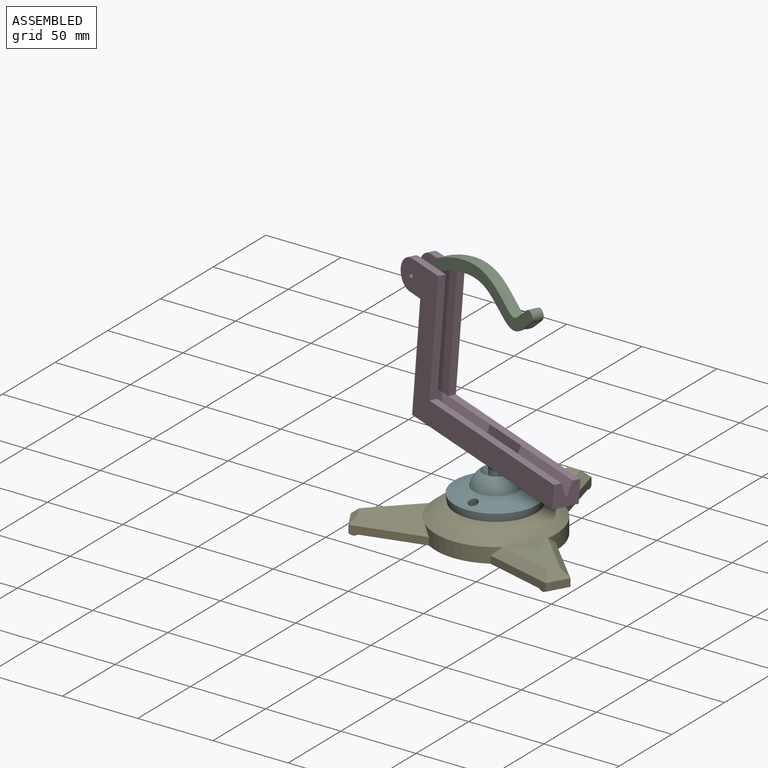
[diagram: assembled view]
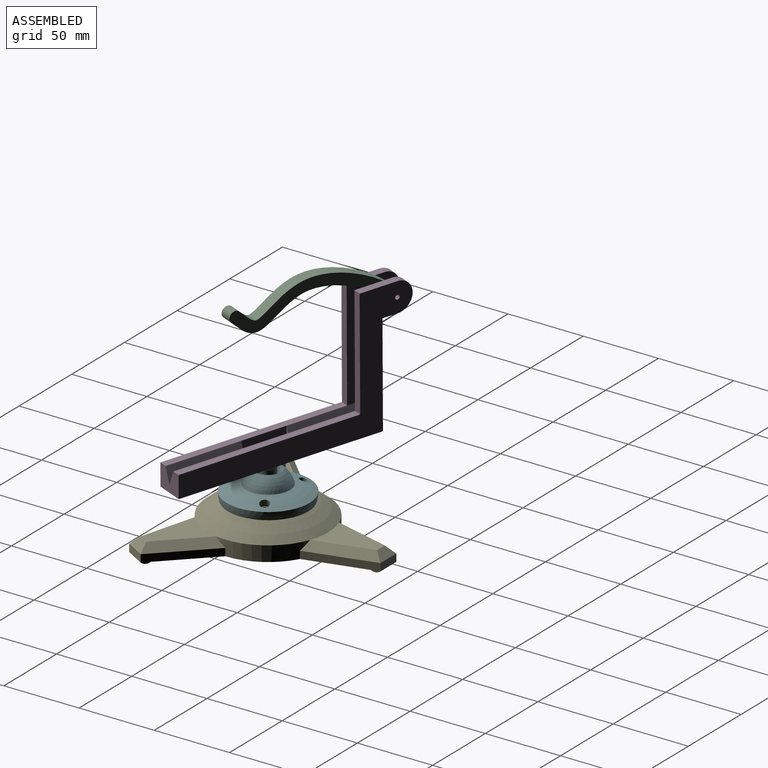
[diagram: assembled view, second angle]
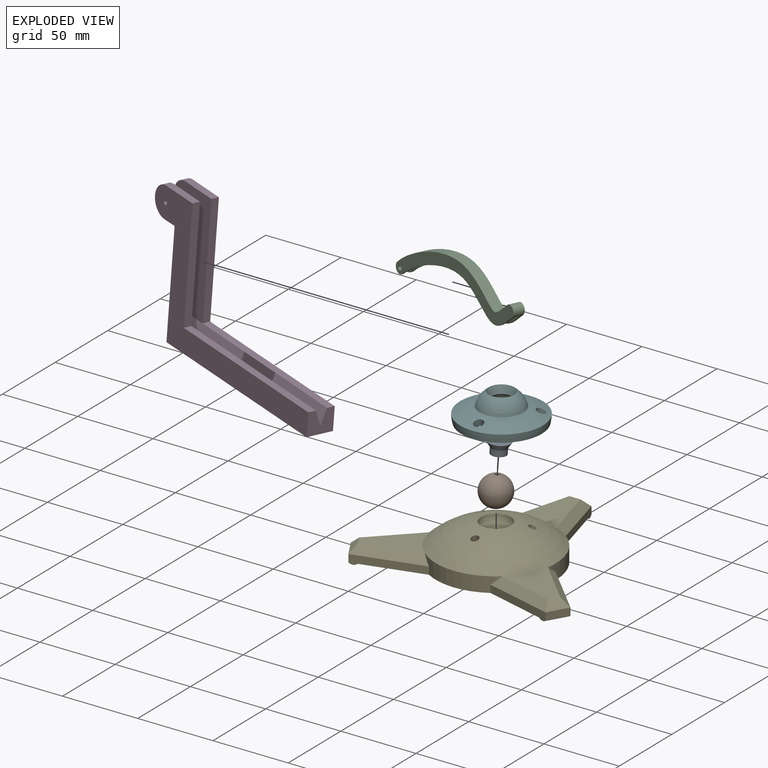
[diagram: exploded view]
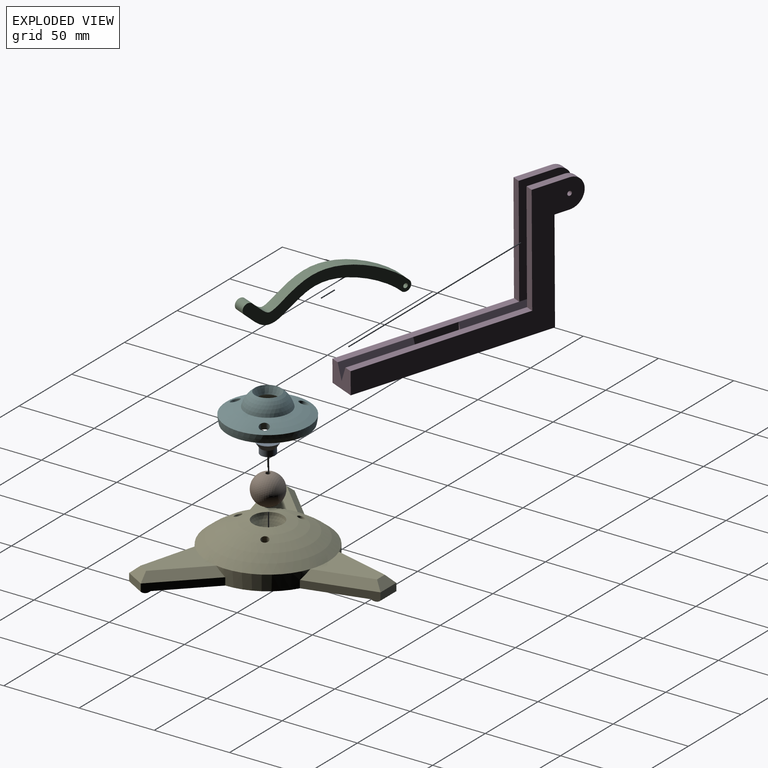
[diagram: exploded view, second angle]
ASSEMBLY  parts=6 mates=6
PART A: 5 faces, bbox 15x15x8 mm
  f0: cylinder r=5mm len=10mm, axis (0,0,-1), area 125.7mm2, adj f3,f4
  f1: cylinder r=1.5mm len=6.77mm, axis (0,0,-1), area 63.8mm2, adj f2,f3
  f2: plane 15x15mm, normal (0,0,-1), area 169.6mm2, adj f1,f4
  f3: sphere r=10mm, area 77.1mm2, adj f0,f1
  f4: cone r=7.5mm half-angle=32deg, axis (0,0,-1), area 185.2mm2, adj f0,f2
PART B: 4 faces, bbox 20x20x20 mm
  f0: sphere r=10mm, area 1197.1mm2, adj f1,f2
  f1: cylinder r=1.5mm len=16.05mm, axis (0,0,1), area 151.3mm2, adj f0,f3
  f2: cylinder r=4mm len=8mm, axis (0,0,1), area 75.4mm2, adj f0,f3
  f3: plane 8x8mm, normal (0,0,1), area 43.2mm2, adj f1,f2
PART C: 13 faces, bbox 113.5x27.2x8.5 mm
  f0: extruded ~104.73x18.64mm, area 146.1mm2, adj f1,f3,f7,f12
  f1: cylinder r=3.75mm len=7.5mm, axis (0,0,-1), area 72.2mm2, adj f0,f2,f4,f6,f7,f9,f10
  f2: extruded ~104.73x18.64mm, area 146.1mm2, adj f1,f3,f6,f11
  f3: cylinder r=3.75mm len=7.5mm, axis (0,0,-1), area 88.4mm2, adj f0,f2,f4,f6,f7,f8
  f4: extruded ~105.27x19.51mm, area 880.7mm2, adj f1,f3,f6,f7
  f5: cylinder r=1.5mm len=7.5mm, axis (0,0,-1), area 63mm2, adj f6,f7,f9,f10,f11,f12
  f6: plane 112.5x26.15mm, normal (0,0,1), area 915.3mm2, adj f1,f2,f3,f4,f5
  f7: plane 112.5x26.15mm, normal (0,0,-1), area 915.3mm2, adj f0,f1,f3,f4,f5
  f8: plane 5x3.51mm, normal (-0.81,-0.59,0), area 10.8mm2, adj f3,f11,f12
  f9: plane 6.65x4.29mm, normal (0.33,-0.38,-0.87), area 12.2mm2, adj f1,f5,f10,f11
  f10: plane 6.65x4.29mm, normal (0.33,-0.38,0.87), area 12.2mm2, adj f1,f5,f9,f12
  f11: bspline ~107.58x22.95mm, area 582.5mm2, adj f2,f5,f8,f9,f12
  f12: bspline ~107.58x22.95mm, area 582.5mm2, adj f0,f5,f8,f10,f11
PART D: 40 faces, bbox 155x17.5x90 mm
  f0: plane 30x10mm, normal (0,1,0), area 300mm2, adj f1,f10,f35,f39
  f1: plane 30x7.5mm, normal (0,0,1), area 198.8mm2, adj f0,f2,f22,f23,f24,f25,f26,f27
  f2: plane 30x10mm, normal (0,-1,0), area 300mm2, adj f1,f7,f33,f37
  f3: plane 75x35mm, normal (0,-1,0), area 1125mm2, adj f4,f5,f6,f18,f19,f20,f30,f32
  f4: cylinder r=10mm len=20mm, axis (0,1,0), area 157.1mm2, adj f3,f5,f14,f17
  f5: plane 25x5mm, normal (0,0,1), area 125mm2, adj f3,f4,f6,f17
  f6: plane 75x5mm, normal (1,0,0), area 375mm2, adj f3,f5,f7,f17
  f7: plane 120x5mm, normal (0,0,1), area 600mm2, adj f2,f6,f8,f17,f32,f36
  f8: plane 17.5x15mm, normal (1,0,0), area 225mm2, adj f7,f9,f10,f16,f17,f36,f38
  f9: plane 135x17.5mm, normal (0,0,-1), area 2355.4mm2, adj f8,f15,f16,f17,f29
  f10: plane 120x5mm, normal (0,0,1), area 600mm2, adj f0,f8,f11,f16,f34,f38
  f11: plane 75x5mm, normal (1,0,0), area 375mm2, adj f10,f12,f16,f21
  f12: plane 25x5mm, normal (0,0,1), area 125mm2, adj f11,f13,f16,f21
  f13: cylinder r=10mm len=20mm, axis (0,1,0), area 157.1mm2, adj f12,f14,f16,f21
  f14: plane 17.5x10mm, normal (0,0,-1), area 175mm2, adj f4,f13,f15,f16,f17,f18
  f15: plane 70x17.5mm, normal (-1,0,0), area 1225mm2, adj f9,f14,f16,f17
  f16: plane 155x90mm, normal (0,-1,0), area 3500mm2, adj f8,f9,f10,f11,f12,f13,f14,f15
  f17: plane 155x90mm, normal (0,1,0), area 3500mm2, adj f4,f5,f6,f7,f8,f9,f14,f15
  f18: plane 7.5x5mm, normal (-1,0,0), area 37.5mm2, adj f3,f14,f19,f21
  f19: plane 15x7.5mm, normal (0,0,1), area 112.5mm2, adj f3,f18,f20,f21
  f20: plane 70x7.5mm, normal (1,0,0), area 487.5mm2, adj f3,f19,f21,f32,f34
  f21: plane 75x35mm, normal (0,1,0), area 1125mm2, adj f11,f12,f13,f18,f19,f20,f31,f34
  f22: plane 3x2.75mm, normal (0.5,0.87,0), area 9.5mm2, adj f1,f23,f27,f28
  f23: plane 3x2.75mm, normal (-0.5,0.87,0), area 9.5mm2, adj f1,f22,f24,f28
  f24: plane 3.18x3mm, normal (-1,0,0), area 9.5mm2, adj f1,f23,f25,f28
  f25: plane 3x2.75mm, normal (-0.5,-0.87,0), area 9.5mm2, adj f1,f24,f26,f28
  f26: plane 3x2.75mm, normal (0.5,-0.87,0), area 9.5mm2, adj f1,f25,f27,f28
  f27: plane 3.18x3mm, normal (1,0,0), area 9.5mm2, adj f1,f22,f26,f28
  f28: plane 6.35x5.5mm, normal (0,0,1), area 19.1mm2, adj f22,f23,f24,f25,f26,f27,f29
  f29: cylinder r=1.5mm len=3mm, axis (0,0,1), area 18.8mm2, adj f9,f28
  f30: cylinder r=1.5mm len=5mm, axis (0,-1,0), area 47.1mm2, adj f3,f17
  f31: cylinder r=1.5mm len=5mm, axis (0,-1,0), area 47.1mm2, adj f16,f21
  f32: plane 50x10mm, normal (0,-0.94,0.35), area 534mm2, adj f3,f7,f20,f33,f34
  f33: plane 10x3.75mm, normal (1,0,0), area 18.8mm2, adj f1,f2,f32
  f34: plane 50x10mm, normal (0,0.94,0.35), area 534mm2, adj f10,f20,f21,f32,f35
  f35: plane 10x3.75mm, normal (1,0,0), area 18.7mm2, adj f0,f1,f34
  f36: plane 50x10mm, normal (0,-0.94,0.35), area 534mm2, adj f7,f8,f37,f38
  f37: plane 10x3.75mm, normal (-1,0,0), area 18.8mm2, adj f1,f2,f36
  f38: plane 50x10mm, normal (0,0.94,0.35), area 534mm2, adj f8,f10,f36,f39
  f39: plane 10x3.75mm, normal (-1,0,0), area 18.8mm2, adj f0,f1,f38
PART E: 33 faces, bbox 147.5x127.7x26.1 mm
  f0: plane 138.32x119.79mm, normal (0,0,-1), area 7963.9mm2, adj f4,f5,f6,f8,f9,f10,f12,f13
  f1: plane 41.08x33.74mm, normal (0,0,1), area 604.9mm2, adj f17,f24,f25,f26
  f2: plane 41.08x33.74mm, normal (0,0,1), area 604.9mm2, adj f17,f18,f19,f20
  f3: plane 12.99x7.5mm, normal (0.87,-0.5,0), area 75mm2, adj f4,f14,f25,f32
  f4: plane 33.03x33.03mm, normal (0.71,0.71,0), area 237.3mm2, adj f0,f3,f5,f24,f32
  f5: cylinder r=40mm len=44.52mm, axis (0,0,-1), area 461.5mm2, adj f0,f4,f6,f17,f21,f24
  f6: plane 45.13x12.09mm, normal (0.97,0.26,0), area 237.3mm2, adj f0,f5,f7,f21,f30
  f7: plane 15x5mm, normal (0,1,0), area 75mm2, adj f6,f8,f22,f30
  f8: plane 45.13x12.09mm, normal (-0.97,0.26,0), area 237.3mm2, adj f0,f7,f9,f23,f30
  f9: cylinder r=40mm len=44.52mm, axis (0,0,-1), area 461.5mm2, adj f0,f8,f10,f17,f18,f23
  f10: plane 33.03x33.03mm, normal (-0.71,0.71,0), area 237.3mm2, adj f0,f9,f11,f18,f31
  f11: plane 12.99x7.5mm, normal (-0.87,-0.5,0), area 75mm2, adj f10,f12,f20,f31
  f12: plane 45.13x12.09mm, normal (0.26,-0.97,0), area 237.3mm2, adj f0,f11,f13,f19,f31
  f13: cylinder r=40mm len=51.41mm, axis (0,0,-1), area 461.5mm2, adj f0,f12,f14,f17,f19,f26
  f14: plane 45.13x12.09mm, normal (-0.26,-0.97,0), area 237.3mm2, adj f0,f3,f13,f26,f32
  f15: plane 37.42x27.38mm, normal (0,0,1), area 604.9mm2, adj f17,f21,f22,f23
  f16: sphere r=10mm, area 576mm2, adj f17
  f17: sphere r=60mm, area 5386.8mm2, adj f1,f2,f5,f9,f13,f15,f16,f27
  f18: plane 33.86x33.64mm, normal (-0.5,0.5,0.71), area 301.3mm2, adj f2,f9,f10,f20
  f19: plane 45.13x15.85mm, normal (0.18,-0.68,0.71), area 301.3mm2, adj f2,f12,f13,f20
  f20: plane 12.99x9.91mm, normal (-0.61,-0.35,0.71), area 78.9mm2, adj f2,f11,f18,f19
  f21: plane 45.13x15.93mm, normal (0.68,0.18,0.71), area 301.3mm2, adj f5,f6,f15,f22
  f22: plane 15x5mm, normal (0,0.71,0.71), area 78.9mm2, adj f7,f15,f21,f23
  f23: plane 45.13x15.93mm, normal (-0.68,0.18,0.71), area 301.3mm2, adj f8,f9,f15,f22
  f24: plane 33.86x33.64mm, normal (0.5,0.5,0.71), area 301.3mm2, adj f1,f4,f5,f25
  f25: plane 12.99x9.91mm, normal (0.61,-0.35,0.71), area 78.9mm2, adj f1,f3,f24,f26
  f26: plane 45.13x15.85mm, normal (-0.18,-0.68,0.71), area 301.3mm2, adj f1,f13,f14,f25
  f27: cylinder r=2.5mm len=24.31mm, axis (0.29,0.17,0.94), area 363.2mm2, adj f0,f17
  f28: cylinder r=2.5mm len=24.31mm, axis (-0.29,0.17,0.94), area 363.2mm2, adj f0,f17
  f29: cylinder r=2.5mm len=24.31mm, axis (0,-0.33,0.94), area 363.2mm2, adj f0,f17
  f30: cylinder r=4mm len=17.84mm, axis (-1,0,0), area 94.9mm2, adj f0,f6,f7,f8
  f31: cylinder r=4mm len=18.09mm, axis (0.5,-0.87,0), area 94.9mm2, adj f0,f10,f11,f12
  f32: cylinder r=4mm len=18.09mm, axis (0.5,0.87,0), area 94.9mm2, adj f0,f3,f4,f14
PART F: 9 faces, bbox 55x55x18.7 mm
  f0: cone r=6.69mm half-angle=20deg, axis (0,0,1), area 250.6mm2, adj f1,f5
  f1: sphere r=10mm, area 519.1mm2, adj f0,f2
  f2: sphere r=60mm, area 1971mm2, adj f1,f3,f6,f7,f8
  f3: sphere r=27.5mm, area 899.9mm2, adj f2,f4
  f4: sphere r=65mm, area 1717.4mm2, adj f3,f5,f6,f7,f8
  f5: sphere r=15mm, area 851.2mm2, adj f0,f4
  f6: cylinder r=3.1mm len=7.38mm, axis (-0.29,0.17,0.94), area 97.5mm2, adj f2,f4
  f7: cylinder r=3.1mm len=7.38mm, axis (0.29,0.17,0.94), area 97.5mm2, adj f2,f4
  f8: cylinder r=3.1mm len=7.51mm, axis (0,-0.33,0.94), area 97.5mm2, adj f2,f4
PLACE A rot(axis=(1,0.08,-0.03),178.4deg) t=(41.9,42.92,44.6)mm
PLACE B rot(axis=(0.08,-1,0.01),176.7deg) t=(65.53,46.5,25.28)mm
PLACE C rot(axis=(0.97,-0.2,-0.16),88.6deg) t=(-2.81,75.03,82.53)mm
PLACE D rot(axis=(-0.12,0.13,-0.98),20.8deg) t=(-45.77,89.18,47.83)mm
PLACE E t=(65.53,46.5,0)mm
PLACE F t=(-34.47,46.5,25.28)mm
MATE cylindrical C.f1 <-> D.f4  axis (-0.35,-0.94,0.05) through (-5.32,74.3,126.29)mm
MATE ball B.f1 <-> F.f0  axis (-0.05,-0.03,-1) through (65.53,46.5,25.28)mm
MATE ball B.f1 <-> A.f4  axis (-0.05,-0.03,-1) through (66.07,46.82,35.15)mm
MATE planar C.f6 <-> D.f21  axis (-0.35,-0.94,0.05) through (58.8,51.54,147.61)mm
MATE slider A.f1 <-> B.f1  axis (0.05,0.03,1) through (66.32,46.98,39.75)mm
MATE revolute E.f5 <-> F.f0  axis (0,0,-1) through (65.53,46.5,24.45)mm
